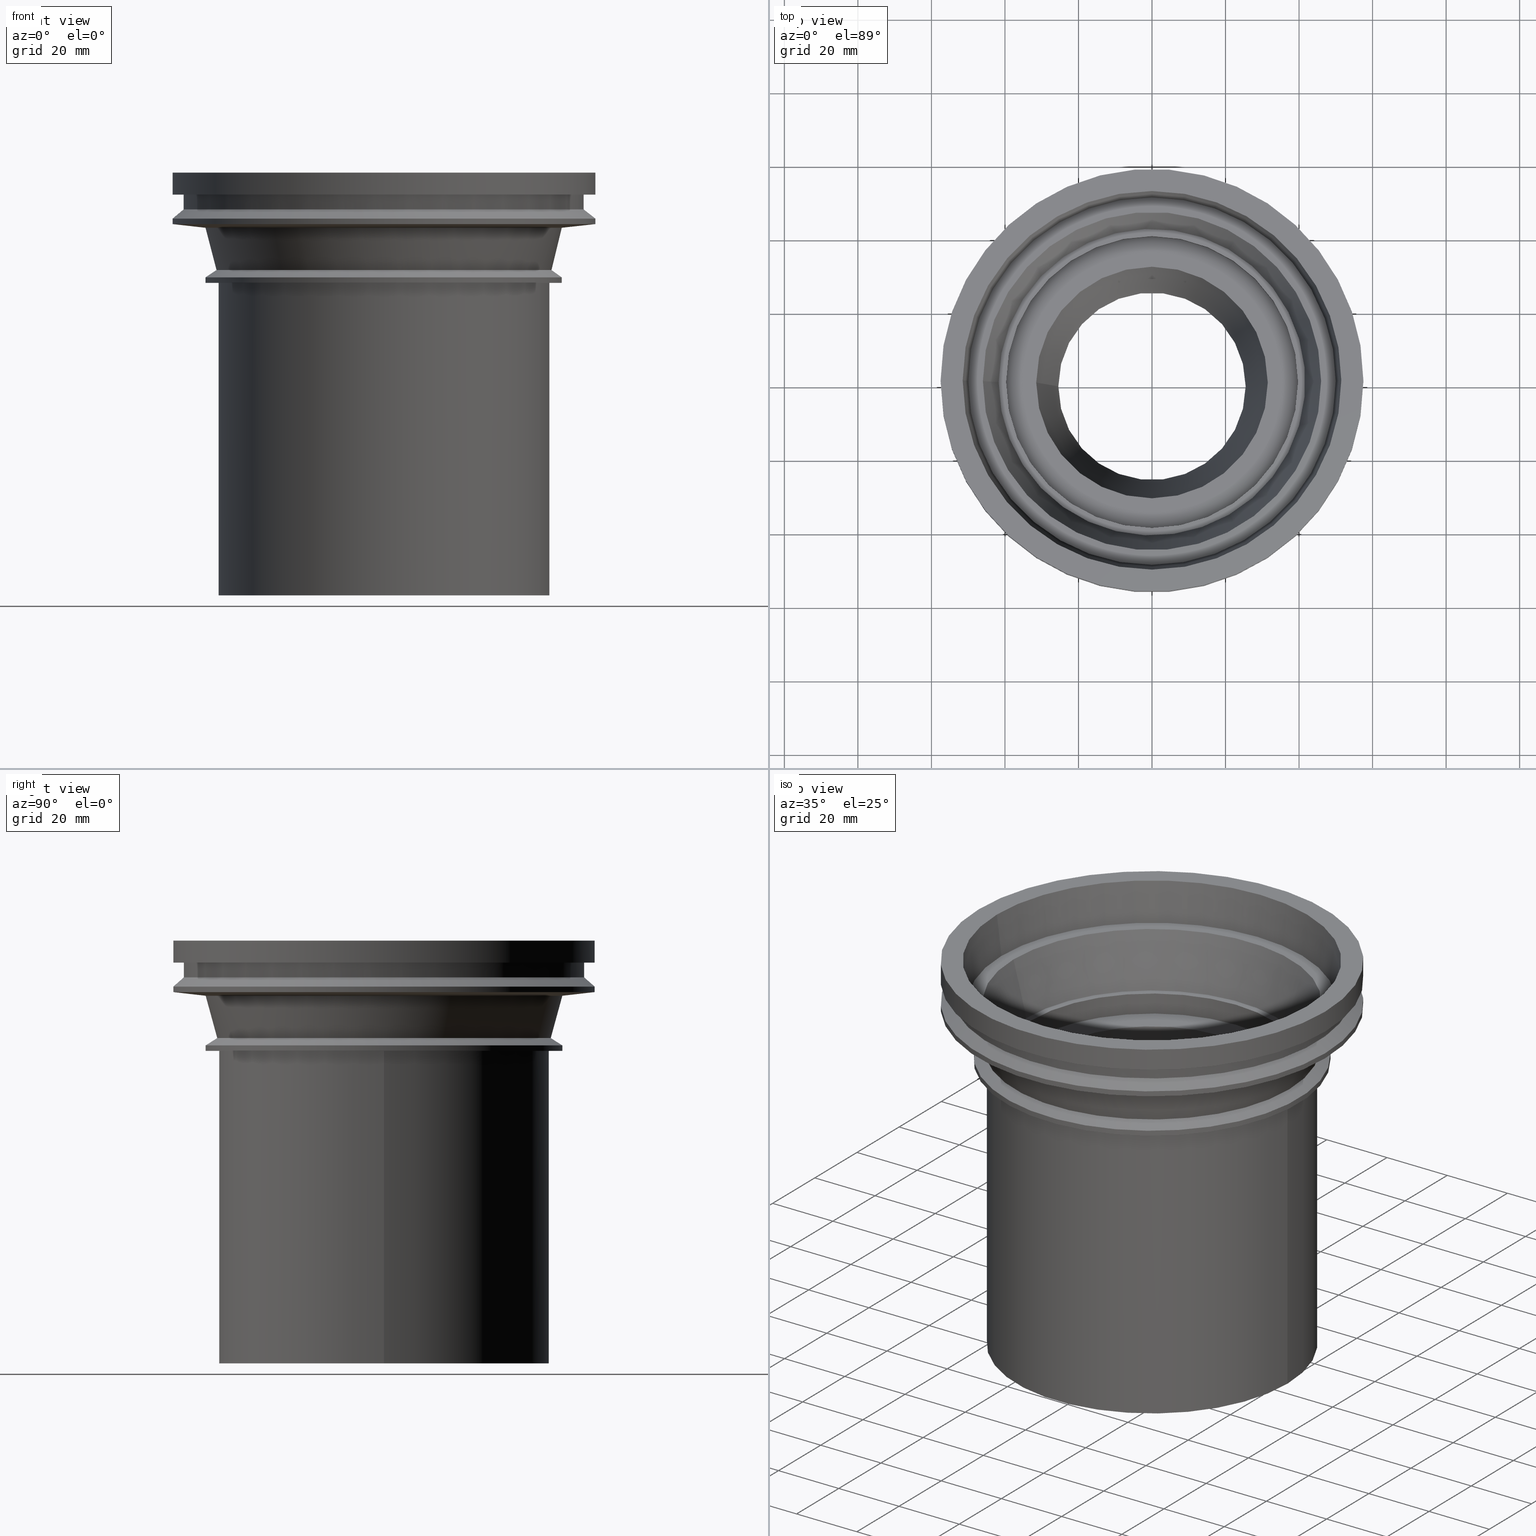
[diagram: canonical four-view strip — front | top / right | iso, engineering-drawing reading convention]
A machine part, canonical four-view strip (front | top / right | iso — engineering-drawing reading convention). The complete STEP part file that produces these views, byte-faithful:
ISO-10303-21;
HEADER;
/* Generated by software containing ST-Developer
 * from STEP Tools, Inc. (www.steptools.com) 
 */
/* OPTION: using custom renumber hook */

FILE_DESCRIPTION(
/* description */ ('STEP AP214'),
/* implementation_level */ '2;1');

FILE_NAME(
/* name */ '482070001(1)',
/* time_stamp */ '2022-12-23T08:15:42+01:00',
/* author */ ('License CC BY-ND 4.0'),
/* organization */ ('CADENAS'),
/* preprocessor_version */ 'ST-DEVELOPER v18.102',
/* originating_system */ 'PARTsolutions',
/* authorisation */ '  ');

FILE_SCHEMA (('AUTOMOTIVE_DESIGN {1 0 10303 214 3 1 1}'));
ENDSEC;

DATA;
#10=PROPERTY_DEFINITION_REPRESENTATION(#14,#12);
#11=PROPERTY_DEFINITION_REPRESENTATION(#15,#13);
#12=REPRESENTATION('',(#16),#608);
#13=REPRESENTATION('',(#17),#608);
#14=PROPERTY_DEFINITION('pmi validation property','',#617);
#15=PROPERTY_DEFINITION('pmi validation property','',#617);
#16=VALUE_REPRESENTATION_ITEM('number of annotations',COUNT_MEASURE(0.));
#17=VALUE_REPRESENTATION_ITEM('number of views',COUNT_MEASURE(0.));
#18=CONICAL_SURFACE('',#369,51.5,0.124354994546762);
#19=CONICAL_SURFACE('',#373,46.,0.255179915820473);
#20=CONICAL_SURFACE('',#381,31.499,0.10039079241774);
#21=CONICAL_SURFACE('',#385,28.478,0.100386889809357);
#22=CONICAL_SURFACE('',#389,40.056,0.927295218001611);
#23=CONICAL_SURFACE('',#397,48.556,0.982793723247329);
#24=CONICAL_SURFACE('',#399,45.556,0.255182390620819);
#25=CONICAL_SURFACE('',#401,48.556,1.45945195543957);
#26=CONICAL_SURFACE('',#405,57.5,0.876058050598195);
#27=CONTEXT_DEPENDENT_SHAPE_REPRESENTATION(#31,#619);
#28=CONTEXT_DEPENDENT_SHAPE_REPRESENTATION(#32,#621);
#29=NEXT_ASSEMBLY_USAGE_OCCURRENCE('NAUO1','482070001(1,85)_P2',
'482070001(1,85)_P2',#622,#623,'');
#30=NEXT_ASSEMBLY_USAGE_OCCURRENCE('NAUO2','482070001(1)_P1',
'482070001(1)_P1',#622,#624,'');
#31=(
REPRESENTATION_RELATIONSHIP(' ',' ',#350,#349)
REPRESENTATION_RELATIONSHIP_WITH_TRANSFORMATION(#33)
SHAPE_REPRESENTATION_RELATIONSHIP()
);
#32=(
REPRESENTATION_RELATIONSHIP(' ',' ',#351,#349)
REPRESENTATION_RELATIONSHIP_WITH_TRANSFORMATION(#34)
SHAPE_REPRESENTATION_RELATIONSHIP()
);
#33=ITEM_DEFINED_TRANSFORMATION(' ',' ',#352,#361);
#34=ITEM_DEFINED_TRANSFORMATION(' ',' ',#352,#408);
#35=SHAPE_REPRESENTATION_RELATIONSHIP('','',#350,#37);
#36=SHAPE_REPRESENTATION_RELATIONSHIP('','',#351,#38);
#37=ADVANCED_BREP_SHAPE_REPRESENTATION('',(#344),#609);
#38=ADVANCED_BREP_SHAPE_REPRESENTATION('',(#345),#610);
#39=CYLINDRICAL_SURFACE('',#356,43.2);
#40=CYLINDRICAL_SURFACE('',#360,45.);
#41=CYLINDRICAL_SURFACE('',#365,57.5);
#42=CYLINDRICAL_SURFACE('',#377,39.709);
#43=CYLINDRICAL_SURFACE('',#391,44.056);
#44=CYLINDRICAL_SURFACE('',#395,48.556);
#45=CYLINDRICAL_SURFACE('',#403,57.5);
#46=CYLINDRICAL_SURFACE('',#407,54.5);
#47=ORIENTED_EDGE('',*,*,#101,.T.);
#48=ORIENTED_EDGE('',*,*,#102,.F.);
#49=ORIENTED_EDGE('',*,*,#103,.T.);
#50=ORIENTED_EDGE('',*,*,#101,.F.);
#51=ORIENTED_EDGE('',*,*,#104,.T.);
#52=ORIENTED_EDGE('',*,*,#103,.F.);
#53=ORIENTED_EDGE('',*,*,#102,.T.);
#54=ORIENTED_EDGE('',*,*,#104,.F.);
#55=ORIENTED_EDGE('',*,*,#105,.T.);
#56=ORIENTED_EDGE('',*,*,#106,.F.);
#57=ORIENTED_EDGE('',*,*,#107,.T.);
#58=ORIENTED_EDGE('',*,*,#105,.F.);
#59=ORIENTED_EDGE('',*,*,#108,.T.);
#60=ORIENTED_EDGE('',*,*,#107,.F.);
#61=ORIENTED_EDGE('',*,*,#109,.T.);
#62=ORIENTED_EDGE('',*,*,#108,.F.);
#63=ORIENTED_EDGE('',*,*,#110,.T.);
#64=ORIENTED_EDGE('',*,*,#109,.F.);
#65=ORIENTED_EDGE('',*,*,#111,.T.);
#66=ORIENTED_EDGE('',*,*,#110,.F.);
#67=ORIENTED_EDGE('',*,*,#112,.T.);
#68=ORIENTED_EDGE('',*,*,#111,.F.);
#69=ORIENTED_EDGE('',*,*,#113,.T.);
#70=ORIENTED_EDGE('',*,*,#112,.F.);
#71=ORIENTED_EDGE('',*,*,#114,.T.);
#72=ORIENTED_EDGE('',*,*,#113,.F.);
#73=ORIENTED_EDGE('',*,*,#115,.T.);
#74=ORIENTED_EDGE('',*,*,#114,.F.);
#75=ORIENTED_EDGE('',*,*,#116,.T.);
#76=ORIENTED_EDGE('',*,*,#115,.F.);
#77=ORIENTED_EDGE('',*,*,#117,.T.);
#78=ORIENTED_EDGE('',*,*,#116,.F.);
#79=ORIENTED_EDGE('',*,*,#118,.T.);
#80=ORIENTED_EDGE('',*,*,#117,.F.);
#81=ORIENTED_EDGE('',*,*,#119,.T.);
#82=ORIENTED_EDGE('',*,*,#118,.F.);
#83=ORIENTED_EDGE('',*,*,#120,.T.);
#84=ORIENTED_EDGE('',*,*,#119,.F.);
#85=ORIENTED_EDGE('',*,*,#121,.T.);
#86=ORIENTED_EDGE('',*,*,#120,.F.);
#87=ORIENTED_EDGE('',*,*,#122,.T.);
#88=ORIENTED_EDGE('',*,*,#121,.F.);
#89=ORIENTED_EDGE('',*,*,#123,.T.);
#90=ORIENTED_EDGE('',*,*,#122,.F.);
#91=ORIENTED_EDGE('',*,*,#124,.T.);
#92=ORIENTED_EDGE('',*,*,#123,.F.);
#93=ORIENTED_EDGE('',*,*,#125,.T.);
#94=ORIENTED_EDGE('',*,*,#124,.F.);
#95=ORIENTED_EDGE('',*,*,#126,.T.);
#96=ORIENTED_EDGE('',*,*,#125,.F.);
#97=ORIENTED_EDGE('',*,*,#127,.T.);
#98=ORIENTED_EDGE('',*,*,#126,.F.);
#99=ORIENTED_EDGE('',*,*,#106,.T.);
#100=ORIENTED_EDGE('',*,*,#127,.F.);
#101=EDGE_CURVE('',#128,#128,#155,.T.);
#102=EDGE_CURVE('',#129,#129,#156,.T.);
#103=EDGE_CURVE('',#130,#130,#157,.T.);
#104=EDGE_CURVE('',#131,#131,#158,.T.);
#105=EDGE_CURVE('',#132,#132,#159,.T.);
#106=EDGE_CURVE('',#133,#133,#160,.T.);
#107=EDGE_CURVE('',#134,#134,#161,.T.);
#108=EDGE_CURVE('',#135,#135,#162,.T.);
#109=EDGE_CURVE('',#136,#136,#163,.T.);
#110=EDGE_CURVE('',#137,#137,#164,.T.);
#111=EDGE_CURVE('',#138,#138,#165,.T.);
#112=EDGE_CURVE('',#139,#139,#166,.T.);
#113=EDGE_CURVE('',#140,#140,#167,.T.);
#114=EDGE_CURVE('',#141,#141,#168,.T.);
#115=EDGE_CURVE('',#142,#142,#169,.T.);
#116=EDGE_CURVE('',#143,#143,#170,.T.);
#117=EDGE_CURVE('',#144,#144,#171,.T.);
#118=EDGE_CURVE('',#145,#145,#172,.T.);
#119=EDGE_CURVE('',#146,#146,#173,.T.);
#120=EDGE_CURVE('',#147,#147,#174,.T.);
#121=EDGE_CURVE('',#148,#148,#175,.T.);
#122=EDGE_CURVE('',#149,#149,#176,.T.);
#123=EDGE_CURVE('',#150,#150,#177,.T.);
#124=EDGE_CURVE('',#151,#151,#178,.T.);
#125=EDGE_CURVE('',#152,#152,#179,.T.);
#126=EDGE_CURVE('',#153,#153,#180,.T.);
#127=EDGE_CURVE('',#154,#154,#181,.T.);
#128=VERTEX_POINT('',#526);
#129=VERTEX_POINT('',#528);
#130=VERTEX_POINT('',#531);
#131=VERTEX_POINT('',#534);
#132=VERTEX_POINT('',#539);
#133=VERTEX_POINT('',#541);
#134=VERTEX_POINT('',#544);
#135=VERTEX_POINT('',#547);
#136=VERTEX_POINT('',#550);
#137=VERTEX_POINT('',#553);
#138=VERTEX_POINT('',#556);
#139=VERTEX_POINT('',#559);
#140=VERTEX_POINT('',#562);
#141=VERTEX_POINT('',#565);
#142=VERTEX_POINT('',#568);
#143=VERTEX_POINT('',#571);
#144=VERTEX_POINT('',#574);
#145=VERTEX_POINT('',#577);
#146=VERTEX_POINT('',#580);
#147=VERTEX_POINT('',#583);
#148=VERTEX_POINT('',#586);
#149=VERTEX_POINT('',#589);
#150=VERTEX_POINT('',#592);
#151=VERTEX_POINT('',#595);
#152=VERTEX_POINT('',#598);
#153=VERTEX_POINT('',#601);
#154=VERTEX_POINT('',#604);
#155=CIRCLE('',#354,43.2);
#156=CIRCLE('',#355,45.);
#157=CIRCLE('',#357,43.2);
#158=CIRCLE('',#359,45.);
#159=CIRCLE('',#363,57.5);
#160=CIRCLE('',#364,54.5);
#161=CIRCLE('',#366,57.5);
#162=CIRCLE('',#368,51.5);
#163=CIRCLE('',#370,50.);
#164=CIRCLE('',#372,46.);
#165=CIRCLE('',#374,41.709);
#166=CIRCLE('',#376,39.709);
#167=CIRCLE('',#378,39.709);
#168=CIRCLE('',#380,31.499);
#169=CIRCLE('',#382,25.478);
#170=CIRCLE('',#384,28.478);
#171=CIRCLE('',#386,33.99);
#172=CIRCLE('',#388,40.056);
#173=CIRCLE('',#390,44.056);
#174=CIRCLE('',#392,44.056);
#175=CIRCLE('',#394,48.556);
#176=CIRCLE('',#396,48.556);
#177=CIRCLE('',#398,45.556);
#178=CIRCLE('',#400,48.556);
#179=CIRCLE('',#402,57.5);
#180=CIRCLE('',#404,57.5);
#181=CIRCLE('',#406,54.5);
#182=EDGE_LOOP('',(#47));
#183=EDGE_LOOP('',(#48));
#184=EDGE_LOOP('',(#49));
#185=EDGE_LOOP('',(#50));
#186=EDGE_LOOP('',(#51));
#187=EDGE_LOOP('',(#52));
#188=EDGE_LOOP('',(#53));
#189=EDGE_LOOP('',(#54));
#190=EDGE_LOOP('',(#55));
#191=EDGE_LOOP('',(#56));
#192=EDGE_LOOP('',(#57));
#193=EDGE_LOOP('',(#58));
#194=EDGE_LOOP('',(#59));
#195=EDGE_LOOP('',(#60));
#196=EDGE_LOOP('',(#61));
#197=EDGE_LOOP('',(#62));
#198=EDGE_LOOP('',(#63));
#199=EDGE_LOOP('',(#64));
#200=EDGE_LOOP('',(#65));
#201=EDGE_LOOP('',(#66));
#202=EDGE_LOOP('',(#67));
#203=EDGE_LOOP('',(#68));
#204=EDGE_LOOP('',(#69));
#205=EDGE_LOOP('',(#70));
#206=EDGE_LOOP('',(#71));
#207=EDGE_LOOP('',(#72));
#208=EDGE_LOOP('',(#73));
#209=EDGE_LOOP('',(#74));
#210=EDGE_LOOP('',(#75));
#211=EDGE_LOOP('',(#76));
#212=EDGE_LOOP('',(#77));
#213=EDGE_LOOP('',(#78));
#214=EDGE_LOOP('',(#79));
#215=EDGE_LOOP('',(#80));
#216=EDGE_LOOP('',(#81));
#217=EDGE_LOOP('',(#82));
#218=EDGE_LOOP('',(#83));
#219=EDGE_LOOP('',(#84));
#220=EDGE_LOOP('',(#85));
#221=EDGE_LOOP('',(#86));
#222=EDGE_LOOP('',(#87));
#223=EDGE_LOOP('',(#88));
#224=EDGE_LOOP('',(#89));
#225=EDGE_LOOP('',(#90));
#226=EDGE_LOOP('',(#91));
#227=EDGE_LOOP('',(#92));
#228=EDGE_LOOP('',(#93));
#229=EDGE_LOOP('',(#94));
#230=EDGE_LOOP('',(#95));
#231=EDGE_LOOP('',(#96));
#232=EDGE_LOOP('',(#97));
#233=EDGE_LOOP('',(#98));
#234=EDGE_LOOP('',(#99));
#235=EDGE_LOOP('',(#100));
#236=FACE_BOUND('',#182,.T.);
#237=FACE_BOUND('',#183,.T.);
#238=FACE_BOUND('',#184,.T.);
#239=FACE_BOUND('',#185,.T.);
#240=FACE_BOUND('',#186,.T.);
#241=FACE_BOUND('',#187,.T.);
#242=FACE_BOUND('',#188,.T.);
#243=FACE_BOUND('',#189,.T.);
#244=FACE_BOUND('',#190,.T.);
#245=FACE_BOUND('',#191,.T.);
#246=FACE_BOUND('',#192,.T.);
#247=FACE_BOUND('',#193,.T.);
#248=FACE_BOUND('',#194,.T.);
#249=FACE_BOUND('',#195,.T.);
#250=FACE_BOUND('',#196,.T.);
#251=FACE_BOUND('',#197,.T.);
#252=FACE_BOUND('',#198,.T.);
#253=FACE_BOUND('',#199,.T.);
#254=FACE_BOUND('',#200,.T.);
#255=FACE_BOUND('',#201,.T.);
#256=FACE_BOUND('',#202,.T.);
#257=FACE_BOUND('',#203,.T.);
#258=FACE_BOUND('',#204,.T.);
#259=FACE_BOUND('',#205,.T.);
#260=FACE_BOUND('',#206,.T.);
#261=FACE_BOUND('',#207,.T.);
#262=FACE_BOUND('',#208,.T.);
#263=FACE_BOUND('',#209,.T.);
#264=FACE_BOUND('',#210,.T.);
#265=FACE_BOUND('',#211,.T.);
#266=FACE_BOUND('',#212,.T.);
#267=FACE_BOUND('',#213,.T.);
#268=FACE_BOUND('',#214,.T.);
#269=FACE_BOUND('',#215,.T.);
#270=FACE_BOUND('',#216,.T.);
#271=FACE_BOUND('',#217,.T.);
#272=FACE_BOUND('',#218,.T.);
#273=FACE_BOUND('',#219,.T.);
#274=FACE_BOUND('',#220,.T.);
#275=FACE_BOUND('',#221,.T.);
#276=FACE_BOUND('',#222,.T.);
#277=FACE_BOUND('',#223,.T.);
#278=FACE_BOUND('',#224,.T.);
#279=FACE_BOUND('',#225,.T.);
#280=FACE_BOUND('',#226,.T.);
#281=FACE_BOUND('',#227,.T.);
#282=FACE_BOUND('',#228,.T.);
#283=FACE_BOUND('',#229,.T.);
#284=FACE_BOUND('',#230,.T.);
#285=FACE_BOUND('',#231,.T.);
#286=FACE_BOUND('',#232,.T.);
#287=FACE_BOUND('',#233,.T.);
#288=FACE_BOUND('',#234,.T.);
#289=FACE_BOUND('',#235,.T.);
#290=PLANE('',#353);
#291=PLANE('',#358);
#292=PLANE('',#362);
#293=PLANE('',#367);
#294=PLANE('',#371);
#295=PLANE('',#375);
#296=PLANE('',#379);
#297=PLANE('',#383);
#298=PLANE('',#387);
#299=PLANE('',#393);
#300=ADVANCED_FACE('',(#236,#237),#290,.T.);
#301=ADVANCED_FACE('',(#238,#239),#39,.F.);
#302=ADVANCED_FACE('',(#240,#241),#291,.T.);
#303=ADVANCED_FACE('',(#242,#243),#40,.T.);
#304=ADVANCED_FACE('',(#244,#245),#292,.T.);
#305=ADVANCED_FACE('',(#246,#247),#41,.T.);
#306=ADVANCED_FACE('',(#248,#249),#293,.T.);
#307=ADVANCED_FACE('',(#250,#251),#18,.F.);
#308=ADVANCED_FACE('',(#252,#253),#294,.T.);
#309=ADVANCED_FACE('',(#254,#255),#19,.F.);
#310=ADVANCED_FACE('',(#256,#257),#295,.T.);
#311=ADVANCED_FACE('',(#258,#259),#42,.F.);
#312=ADVANCED_FACE('',(#260,#261),#296,.T.);
#313=ADVANCED_FACE('',(#262,#263),#20,.F.);
#314=ADVANCED_FACE('',(#264,#265),#297,.T.);
#315=ADVANCED_FACE('',(#266,#267),#21,.T.);
#316=ADVANCED_FACE('',(#268,#269),#298,.T.);
#317=ADVANCED_FACE('',(#270,#271),#22,.T.);
#318=ADVANCED_FACE('',(#272,#273),#43,.T.);
#319=ADVANCED_FACE('',(#274,#275),#299,.T.);
#320=ADVANCED_FACE('',(#276,#277),#44,.T.);
#321=ADVANCED_FACE('',(#278,#279),#23,.T.);
#322=ADVANCED_FACE('',(#280,#281),#24,.T.);
#323=ADVANCED_FACE('',(#282,#283),#25,.T.);
#324=ADVANCED_FACE('',(#284,#285),#45,.T.);
#325=ADVANCED_FACE('',(#286,#287),#26,.T.);
#326=ADVANCED_FACE('',(#288,#289),#46,.T.);
#327=CLOSED_SHELL('',(#300,#301,#302,#303));
#328=CLOSED_SHELL('',(#304,#305,#306,#307,#308,#309,#310,#311,#312,#313,
#314,#315,#316,#317,#318,#319,#320,#321,#322,#323,#324,#325,#326));
#329=STYLED_ITEM('',(#331),#344);
#330=STYLED_ITEM('',(#332),#345);
#331=PRESENTATION_STYLE_ASSIGNMENT((#333));
#332=PRESENTATION_STYLE_ASSIGNMENT((#334));
#333=SURFACE_STYLE_USAGE(.BOTH.,#335);
#334=SURFACE_STYLE_USAGE(.BOTH.,#336);
#335=SURFACE_SIDE_STYLE('',(#337));
#336=SURFACE_SIDE_STYLE('',(#338));
#337=SURFACE_STYLE_FILL_AREA(#339);
#338=SURFACE_STYLE_FILL_AREA(#340);
#339=FILL_AREA_STYLE('',(#341));
#340=FILL_AREA_STYLE('',(#342));
#341=FILL_AREA_STYLE_COLOUR('',#343);
#342=FILL_AREA_STYLE_COLOUR('',#343);
#343=COLOUR_RGB('',0.689999997615814,0.689999997615814,0.689999997615814);
#344=MANIFOLD_SOLID_BREP('482070001(1,85)_P2',#327);
#345=MANIFOLD_SOLID_BREP('482070001(1)_P1',#328);
#346=SHAPE_DEFINITION_REPRESENTATION(#617,#349);
#347=SHAPE_DEFINITION_REPRESENTATION(#618,#350);
#348=SHAPE_DEFINITION_REPRESENTATION(#620,#351);
#349=SHAPE_REPRESENTATION('482070001(1)',(#352,#361,#408),#608);
#350=SHAPE_REPRESENTATION('482070001(1,85)_P2',(#352),#609);
#351=SHAPE_REPRESENTATION('482070001(1)_P1',(#352),#610);
#352=AXIS2_PLACEMENT_3D('',#523,#409,#410);
#353=AXIS2_PLACEMENT_3D('',#524,#411,#412);
#354=AXIS2_PLACEMENT_3D('',#525,#413,#414);
#355=AXIS2_PLACEMENT_3D('',#527,#415,#416);
#356=AXIS2_PLACEMENT_3D('',#529,#417,#418);
#357=AXIS2_PLACEMENT_3D('',#530,#419,#420);
#358=AXIS2_PLACEMENT_3D('',#532,#421,#422);
#359=AXIS2_PLACEMENT_3D('',#533,#423,#424);
#360=AXIS2_PLACEMENT_3D('',#535,#425,#426);
#361=AXIS2_PLACEMENT_3D('',#536,#427,#428);
#362=AXIS2_PLACEMENT_3D('',#537,#429,#430);
#363=AXIS2_PLACEMENT_3D('',#538,#431,#432);
#364=AXIS2_PLACEMENT_3D('',#540,#433,#434);
#365=AXIS2_PLACEMENT_3D('',#542,#435,#436);
#366=AXIS2_PLACEMENT_3D('',#543,#437,#438);
#367=AXIS2_PLACEMENT_3D('',#545,#439,#440);
#368=AXIS2_PLACEMENT_3D('',#546,#441,#442);
#369=AXIS2_PLACEMENT_3D('',#548,#443,#444);
#370=AXIS2_PLACEMENT_3D('',#549,#445,#446);
#371=AXIS2_PLACEMENT_3D('',#551,#447,#448);
#372=AXIS2_PLACEMENT_3D('',#552,#449,#450);
#373=AXIS2_PLACEMENT_3D('',#554,#451,#452);
#374=AXIS2_PLACEMENT_3D('',#555,#453,#454);
#375=AXIS2_PLACEMENT_3D('',#557,#455,#456);
#376=AXIS2_PLACEMENT_3D('',#558,#457,#458);
#377=AXIS2_PLACEMENT_3D('',#560,#459,#460);
#378=AXIS2_PLACEMENT_3D('',#561,#461,#462);
#379=AXIS2_PLACEMENT_3D('',#563,#463,#464);
#380=AXIS2_PLACEMENT_3D('',#564,#465,#466);
#381=AXIS2_PLACEMENT_3D('',#566,#467,#468);
#382=AXIS2_PLACEMENT_3D('',#567,#469,#470);
#383=AXIS2_PLACEMENT_3D('',#569,#471,#472);
#384=AXIS2_PLACEMENT_3D('',#570,#473,#474);
#385=AXIS2_PLACEMENT_3D('',#572,#475,#476);
#386=AXIS2_PLACEMENT_3D('',#573,#477,#478);
#387=AXIS2_PLACEMENT_3D('',#575,#479,#480);
#388=AXIS2_PLACEMENT_3D('',#576,#481,#482);
#389=AXIS2_PLACEMENT_3D('',#578,#483,#484);
#390=AXIS2_PLACEMENT_3D('',#579,#485,#486);
#391=AXIS2_PLACEMENT_3D('',#581,#487,#488);
#392=AXIS2_PLACEMENT_3D('',#582,#489,#490);
#393=AXIS2_PLACEMENT_3D('',#584,#491,#492);
#394=AXIS2_PLACEMENT_3D('',#585,#493,#494);
#395=AXIS2_PLACEMENT_3D('',#587,#495,#496);
#396=AXIS2_PLACEMENT_3D('',#588,#497,#498);
#397=AXIS2_PLACEMENT_3D('',#590,#499,#500);
#398=AXIS2_PLACEMENT_3D('',#591,#501,#502);
#399=AXIS2_PLACEMENT_3D('',#593,#503,#504);
#400=AXIS2_PLACEMENT_3D('',#594,#505,#506);
#401=AXIS2_PLACEMENT_3D('',#596,#507,#508);
#402=AXIS2_PLACEMENT_3D('',#597,#509,#510);
#403=AXIS2_PLACEMENT_3D('',#599,#511,#512);
#404=AXIS2_PLACEMENT_3D('',#600,#513,#514);
#405=AXIS2_PLACEMENT_3D('',#602,#515,#516);
#406=AXIS2_PLACEMENT_3D('',#603,#517,#518);
#407=AXIS2_PLACEMENT_3D('',#605,#519,#520);
#408=AXIS2_PLACEMENT_3D('',#606,#521,#522);
#409=DIRECTION('',(0.,0.,1.));
#410=DIRECTION('',(1.,0.,0.));
#411=DIRECTION('',(0.,0.,-1.));
#412=DIRECTION('',(-1.,0.,0.));
#413=DIRECTION('',(0.,0.,1.));
#414=DIRECTION('',(1.,0.,0.));
#415=DIRECTION('',(0.,0.,1.));
#416=DIRECTION('',(1.,0.,0.));
#417=DIRECTION('',(0.,0.,1.));
#418=DIRECTION('',(1.,0.,0.));
#419=DIRECTION('',(0.,0.,1.));
#420=DIRECTION('',(1.,0.,0.));
#421=DIRECTION('',(0.,0.,1.));
#422=DIRECTION('',(1.,0.,0.));
#423=DIRECTION('',(0.,0.,1.));
#424=DIRECTION('',(1.,0.,0.));
#425=DIRECTION('',(0.,0.,1.));
#426=DIRECTION('',(1.,0.,0.));
#427=DIRECTION('',(0.,0.,1.));
#428=DIRECTION('',(1.,0.,0.));
#429=DIRECTION('',(0.,0.,-1.));
#430=DIRECTION('',(-1.,0.,0.));
#431=DIRECTION('',(0.,0.,-1.));
#432=DIRECTION('',(-1.,0.,0.));
#433=DIRECTION('',(0.,0.,-1.));
#434=DIRECTION('',(-1.,0.,0.));
#435=DIRECTION('',(0.,0.,-1.));
#436=DIRECTION('',(-1.,0.,0.));
#437=DIRECTION('',(0.,0.,-1.));
#438=DIRECTION('',(-1.,0.,0.));
#439=DIRECTION('',(0.,0.,1.));
#440=DIRECTION('',(1.,0.,0.));
#441=DIRECTION('',(0.,0.,-1.));
#442=DIRECTION('',(-1.,0.,0.));
#443=DIRECTION('',(0.,0.,1.));
#444=DIRECTION('',(1.,0.,0.));
#445=DIRECTION('',(0.,0.,-1.));
#446=DIRECTION('',(-1.,0.,0.));
#447=DIRECTION('',(0.,0.,1.));
#448=DIRECTION('',(1.,0.,0.));
#449=DIRECTION('',(0.,0.,-1.));
#450=DIRECTION('',(-1.,0.,0.));
#451=DIRECTION('',(0.,0.,1.));
#452=DIRECTION('',(1.,0.,0.));
#453=DIRECTION('',(0.,0.,-1.));
#454=DIRECTION('',(-1.,0.,0.));
#455=DIRECTION('',(0.,0.,1.));
#456=DIRECTION('',(1.,0.,0.));
#457=DIRECTION('',(0.,0.,-1.));
#458=DIRECTION('',(-1.,0.,0.));
#459=DIRECTION('',(0.,0.,-1.));
#460=DIRECTION('',(-1.,0.,0.));
#461=DIRECTION('',(0.,0.,-1.));
#462=DIRECTION('',(-1.,0.,0.));
#463=DIRECTION('',(0.,0.,1.));
#464=DIRECTION('',(1.,0.,0.));
#465=DIRECTION('',(0.,0.,-1.));
#466=DIRECTION('',(-1.,0.,0.));
#467=DIRECTION('',(0.,0.,1.));
#468=DIRECTION('',(1.,0.,0.));
#469=DIRECTION('',(0.,0.,-1.));
#470=DIRECTION('',(-1.,0.,0.));
#471=DIRECTION('',(0.,0.,-1.));
#472=DIRECTION('',(-1.,0.,0.));
#473=DIRECTION('',(0.,0.,-1.));
#474=DIRECTION('',(-1.,0.,0.));
#475=DIRECTION('',(0.,0.,1.));
#476=DIRECTION('',(1.,0.,0.));
#477=DIRECTION('',(0.,0.,-1.));
#478=DIRECTION('',(-1.,0.,0.));
#479=DIRECTION('',(0.,0.,-1.));
#480=DIRECTION('',(-1.,0.,0.));
#481=DIRECTION('',(0.,0.,-1.));
#482=DIRECTION('',(-1.,0.,0.));
#483=DIRECTION('',(0.,0.,1.));
#484=DIRECTION('',(1.,0.,0.));
#485=DIRECTION('',(0.,0.,-1.));
#486=DIRECTION('',(-1.,0.,0.));
#487=DIRECTION('',(0.,0.,-1.));
#488=DIRECTION('',(-1.,0.,0.));
#489=DIRECTION('',(0.,0.,-1.));
#490=DIRECTION('',(-1.,0.,0.));
#491=DIRECTION('',(0.,0.,-1.));
#492=DIRECTION('',(-1.,0.,0.));
#493=DIRECTION('',(0.,0.,-1.));
#494=DIRECTION('',(-1.,0.,0.));
#495=DIRECTION('',(0.,0.,-1.));
#496=DIRECTION('',(-1.,0.,0.));
#497=DIRECTION('',(0.,0.,-1.));
#498=DIRECTION('',(-1.,0.,0.));
#499=DIRECTION('',(0.,0.,-1.));
#500=DIRECTION('',(-1.,0.,0.));
#501=DIRECTION('',(0.,0.,-1.));
#502=DIRECTION('',(-1.,0.,0.));
#503=DIRECTION('',(0.,0.,1.));
#504=DIRECTION('',(1.,0.,0.));
#505=DIRECTION('',(0.,0.,-1.));
#506=DIRECTION('',(-1.,0.,0.));
#507=DIRECTION('',(0.,0.,1.));
#508=DIRECTION('',(1.,0.,0.));
#509=DIRECTION('',(0.,0.,-1.));
#510=DIRECTION('',(-1.,0.,0.));
#511=DIRECTION('',(0.,0.,-1.));
#512=DIRECTION('',(-1.,0.,0.));
#513=DIRECTION('',(0.,0.,-1.));
#514=DIRECTION('',(-1.,0.,0.));
#515=DIRECTION('',(0.,0.,-1.));
#516=DIRECTION('',(-1.,0.,0.));
#517=DIRECTION('',(0.,0.,-1.));
#518=DIRECTION('',(-1.,0.,0.));
#519=DIRECTION('',(0.,0.,-1.));
#520=DIRECTION('',(-1.,0.,0.));
#521=DIRECTION('',(0.,0.,1.));
#522=DIRECTION('',(1.,0.,0.));
#523=CARTESIAN_POINT('',(0.,0.,0.));
#524=CARTESIAN_POINT('',(45.,0.,-85.));
#525=CARTESIAN_POINT('',(0.,0.,-85.));
#526=CARTESIAN_POINT('',(43.2,0.,-85.));
#527=CARTESIAN_POINT('',(0.,0.,-85.));
#528=CARTESIAN_POINT('',(45.,0.,-85.));
#529=CARTESIAN_POINT('',(0.,0.,50.));
#530=CARTESIAN_POINT('',(0.,0.,0.));
#531=CARTESIAN_POINT('',(43.2,0.,0.));
#532=CARTESIAN_POINT('',(43.2,0.,0.));
#533=CARTESIAN_POINT('',(0.,0.,0.));
#534=CARTESIAN_POINT('',(45.,0.,0.));
#535=CARTESIAN_POINT('',(0.,0.,50.));
#536=CARTESIAN_POINT('',(0.,0.,-30.));
#537=CARTESIAN_POINT('',(-54.5,0.,-6.));
#538=CARTESIAN_POINT('',(0.,0.,-6.));
#539=CARTESIAN_POINT('',(-57.5,0.,-6.));
#540=CARTESIAN_POINT('',(0.,0.,-6.));
#541=CARTESIAN_POINT('',(-54.5,0.,-6.));
#542=CARTESIAN_POINT('',(0.,0.,-50.));
#543=CARTESIAN_POINT('',(0.,0.,0.));
#544=CARTESIAN_POINT('',(-57.5,0.,0.));
#545=CARTESIAN_POINT('',(-57.5,0.,0.));
#546=CARTESIAN_POINT('',(0.,0.,0.));
#547=CARTESIAN_POINT('',(-51.5,0.,0.));
#548=CARTESIAN_POINT('',(0.,0.,0.));
#549=CARTESIAN_POINT('',(0.,0.,-12.));
#550=CARTESIAN_POINT('',(-50.,0.,-12.));
#551=CARTESIAN_POINT('',(-50.,0.,-12.));
#552=CARTESIAN_POINT('',(0.,0.,-12.));
#553=CARTESIAN_POINT('',(-46.,0.,-12.));
#554=CARTESIAN_POINT('',(0.,0.,-12.));
#555=CARTESIAN_POINT('',(0.,0.,-28.449));
#556=CARTESIAN_POINT('',(-41.709,0.,-28.449));
#557=CARTESIAN_POINT('',(-41.709,0.,-28.449));
#558=CARTESIAN_POINT('',(0.,0.,-28.449));
#559=CARTESIAN_POINT('',(-39.709,0.,-28.449));
#560=CARTESIAN_POINT('',(0.,0.,-50.));
#561=CARTESIAN_POINT('',(0.,0.,-34.449));
#562=CARTESIAN_POINT('',(-39.709,0.,-34.449));
#563=CARTESIAN_POINT('',(-39.709,0.,-34.449));
#564=CARTESIAN_POINT('',(0.,0.,-34.449));
#565=CARTESIAN_POINT('',(-31.499,0.,-34.449));
#566=CARTESIAN_POINT('',(0.,0.,-34.449));
#567=CARTESIAN_POINT('',(0.,0.,-94.223));
#568=CARTESIAN_POINT('',(-25.478,0.,-94.223));
#569=CARTESIAN_POINT('',(-25.478,0.,-94.223));
#570=CARTESIAN_POINT('',(0.,0.,-94.223));
#571=CARTESIAN_POINT('',(-28.478,0.,-94.223));
#572=CARTESIAN_POINT('',(0.,0.,-94.223));
#573=CARTESIAN_POINT('',(0.,0.,-39.5));
#574=CARTESIAN_POINT('',(-33.99,0.,-39.5));
#575=CARTESIAN_POINT('',(-33.99,0.,-39.5));
#576=CARTESIAN_POINT('',(0.,0.,-39.5));
#577=CARTESIAN_POINT('',(-40.056,0.,-39.5));
#578=CARTESIAN_POINT('',(0.,0.,-39.5));
#579=CARTESIAN_POINT('',(0.,0.,-36.5));
#580=CARTESIAN_POINT('',(-44.056,0.,-36.5));
#581=CARTESIAN_POINT('',(0.,0.,-50.));
#582=CARTESIAN_POINT('',(0.,0.,-30.));
#583=CARTESIAN_POINT('',(-44.056,0.,-30.));
#584=CARTESIAN_POINT('',(-44.056,0.,-30.));
#585=CARTESIAN_POINT('',(0.,0.,-30.));
#586=CARTESIAN_POINT('',(-48.556,0.,-30.));
#587=CARTESIAN_POINT('',(0.,0.,-50.));
#588=CARTESIAN_POINT('',(0.,0.,-28.5));
#589=CARTESIAN_POINT('',(-48.556,0.,-28.5));
#590=CARTESIAN_POINT('',(0.,0.,-28.5));
#591=CARTESIAN_POINT('',(0.,0.,-26.5));
#592=CARTESIAN_POINT('',(-45.556,0.,-26.5));
#593=CARTESIAN_POINT('',(0.,0.,-26.5));
#594=CARTESIAN_POINT('',(0.,0.,-15.));
#595=CARTESIAN_POINT('',(-48.556,0.,-15.));
#596=CARTESIAN_POINT('',(0.,0.,-15.));
#597=CARTESIAN_POINT('',(0.,0.,-14.));
#598=CARTESIAN_POINT('',(-57.5,0.,-14.));
#599=CARTESIAN_POINT('',(0.,0.,-50.));
#600=CARTESIAN_POINT('',(0.,0.,-12.5));
#601=CARTESIAN_POINT('',(-57.5,0.,-12.5));
#602=CARTESIAN_POINT('',(0.,0.,-12.5));
#603=CARTESIAN_POINT('',(0.,0.,-10.));
#604=CARTESIAN_POINT('',(-54.5,0.,-10.));
#605=CARTESIAN_POINT('',(0.,0.,-50.));
#606=CARTESIAN_POINT('',(0.,0.,0.));
#607=MECHANICAL_DESIGN_GEOMETRIC_PRESENTATION_REPRESENTATION('',(#329,#330),
#608);
#608=(
GEOMETRIC_REPRESENTATION_CONTEXT(3)
GLOBAL_UNCERTAINTY_ASSIGNED_CONTEXT((#611))
GLOBAL_UNIT_ASSIGNED_CONTEXT((#616,#615,#614))
REPRESENTATION_CONTEXT('482070001(1)','TOP_LEVEL_ASSEMBLY_PART')
);
#609=(
GEOMETRIC_REPRESENTATION_CONTEXT(3)
GLOBAL_UNCERTAINTY_ASSIGNED_CONTEXT((#612))
GLOBAL_UNIT_ASSIGNED_CONTEXT((#616,#615,#614))
REPRESENTATION_CONTEXT('482070001(1,85)_P2','COMPONENT_PART')
);
#610=(
GEOMETRIC_REPRESENTATION_CONTEXT(3)
GLOBAL_UNCERTAINTY_ASSIGNED_CONTEXT((#613))
GLOBAL_UNIT_ASSIGNED_CONTEXT((#616,#615,#614))
REPRESENTATION_CONTEXT('482070001(1)_P1','COMPONENT_PART')
);
#611=UNCERTAINTY_MEASURE_WITH_UNIT(LENGTH_MEASURE(0.005),#616,
'DISTANCE_ACCURACY_VALUE','Maximum Tolerance applied to model');
#612=UNCERTAINTY_MEASURE_WITH_UNIT(LENGTH_MEASURE(0.005),#616,
'DISTANCE_ACCURACY_VALUE','Maximum Tolerance applied to model');
#613=UNCERTAINTY_MEASURE_WITH_UNIT(LENGTH_MEASURE(0.005),#616,
'DISTANCE_ACCURACY_VALUE','Maximum Tolerance applied to model');
#614=(
NAMED_UNIT(*)
SI_UNIT($,.STERADIAN.)
SOLID_ANGLE_UNIT()
);
#615=(
NAMED_UNIT(*)
PLANE_ANGLE_UNIT()
SI_UNIT($,.RADIAN.)
);
#616=(
LENGTH_UNIT()
NAMED_UNIT(*)
SI_UNIT(.MILLI.,.METRE.)
);
#617=PRODUCT_DEFINITION_SHAPE('','',#622);
#618=PRODUCT_DEFINITION_SHAPE('','',#623);
#619=PRODUCT_DEFINITION_SHAPE(' ','NAUO PRDDFN',#29);
#620=PRODUCT_DEFINITION_SHAPE('','',#624);
#621=PRODUCT_DEFINITION_SHAPE(' ','NAUO PRDDFN',#30);
#622=PRODUCT_DEFINITION('','',#628,#625);
#623=PRODUCT_DEFINITION('','',#629,#626);
#624=PRODUCT_DEFINITION('','',#630,#627);
#625=PRODUCT_DEFINITION_CONTEXT('',#644,'design');
#626=PRODUCT_DEFINITION_CONTEXT('',#644,'design');
#627=PRODUCT_DEFINITION_CONTEXT('',#644,'design');
#628=PRODUCT_DEFINITION_FORMATION_WITH_SPECIFIED_SOURCE('','',#634,
 .NOT_KNOWN.);
#629=PRODUCT_DEFINITION_FORMATION_WITH_SPECIFIED_SOURCE('','',#635,
 .NOT_KNOWN.);
#630=PRODUCT_DEFINITION_FORMATION_WITH_SPECIFIED_SOURCE('','',#636,
 .NOT_KNOWN.);
#631=PRODUCT_RELATED_PRODUCT_CATEGORY('','',(#634));
#632=PRODUCT_RELATED_PRODUCT_CATEGORY('','',(#635));
#633=PRODUCT_RELATED_PRODUCT_CATEGORY('','',(#636));
#634=PRODUCT('482070001(1)','482070001(1)','482070001(1)',(#640));
#635=PRODUCT('482070001(1,85)_P2','482070001(1,85)_P2',
'482070001(1,85)_P2',(#641));
#636=PRODUCT('482070001(1)_P1','482070001(1)_P1','482070001(1)_P1',(#642));
#637=PRODUCT_CATEGORY('','');
#638=PRODUCT_CATEGORY('','');
#639=PRODUCT_CATEGORY('','');
#640=PRODUCT_CONTEXT('',#644,'mechanical');
#641=PRODUCT_CONTEXT('',#644,'mechanical');
#642=PRODUCT_CONTEXT('',#644,'mechanical');
#643=APPLICATION_PROTOCOL_DEFINITION('international standard',
'automotive_design',2010,#644);
#644=APPLICATION_CONTEXT(
'core data for automotive mechanical design processes');
ENDSEC;
END-ISO-10303-21;
